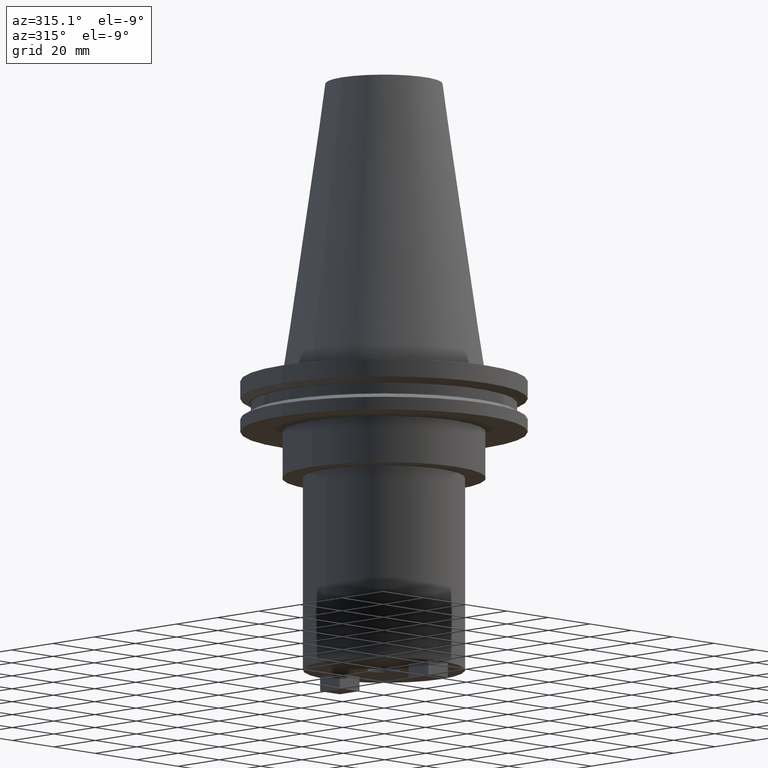
[diagram: clean part render]
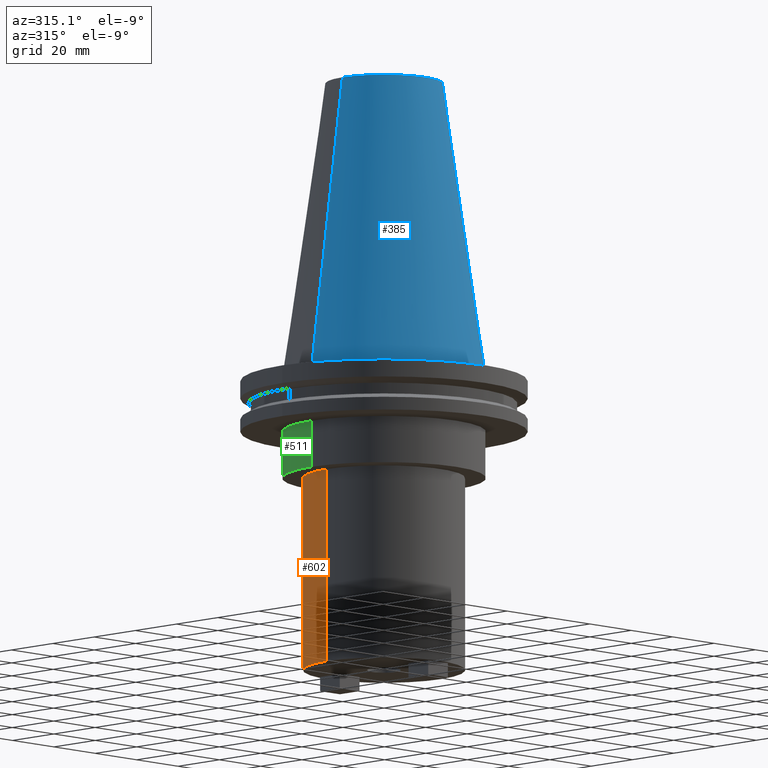
[diagram: same view with three faces highlighted in distinct colors, each labeled with its STEP entity id]
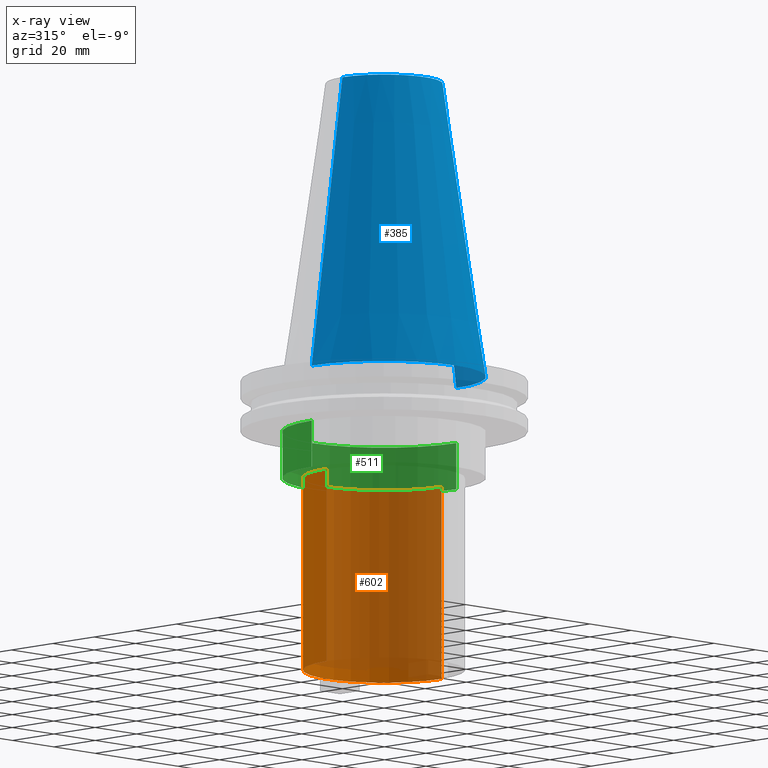
[diagram: x-ray of the same camera — body ghosted, the three highlighted faces saturated]
A machine part, auxiliary view with three faces highlighted in distinct colors.
The next image is the same camera in x-ray (body ghosted, the three faces saturated) — at least one of them is partly hidden behind the body in this view.
Their STEP definitions:

[orange] entity #602 — the highlighted cylindrical surface (partial cylindrical patch) has radius 27.8003 mm, axis along (-0, -0, 1).
#1 = EDGE_CURVE ( 'NONE', #269, #75, #1081, .T. ) ;
#11 = AXIS2_PLACEMENT_3D ( 'NONE', #192, #457, #791 ) ;
#75 = VERTEX_POINT ( 'NONE', #566 ) ;
#134 = AXIS2_PLACEMENT_3D ( 'NONE', #243, #226, #671 ) ;
#153 = DIRECTION ( 'NONE',  ( -0.000000000000000000, -0.000000000000000000, 1.000000000000000000 ) ) ;
#192 = CARTESIAN_POINT ( 'NONE',  ( 0.000000000000000000, 0.000000000000000000, -35.04999999999999716 ) ) ;
#207 = CARTESIAN_POINT ( 'NONE',  ( -27.80030000000000001, 3.404554841033616429E-15, -101.5999999999999943 ) ) ;
#226 = DIRECTION ( 'NONE',  ( -0.000000000000000000, -0.000000000000000000, 1.000000000000000000 ) ) ;
#243 = CARTESIAN_POINT ( 'NONE',  ( 0.000000000000000000, 0.000000000000000000, -101.5999999999999943 ) ) ;
#252 = CARTESIAN_POINT ( 'NONE',  ( -27.80030000000000001, 3.404554841033616429E-15, 0.000000000000000000 ) ) ;
#266 = VECTOR ( 'NONE', #1057, 1000.000000000000000 ) ;
#269 = VERTEX_POINT ( 'NONE', #670 ) ;
#306 = CARTESIAN_POINT ( 'NONE',  ( 0.000000000000000000, 0.000000000000000000, 0.000000000000000000 ) ) ;
#383 = CARTESIAN_POINT ( 'NONE',  ( 27.80030000000000001, 0.000000000000000000, 0.000000000000000000 ) ) ;
#419 = VERTEX_POINT ( 'NONE', #207 ) ;
#457 = DIRECTION ( 'NONE',  ( 0.000000000000000000, 0.000000000000000000, -1.000000000000000000 ) ) ;
#566 = CARTESIAN_POINT ( 'NONE',  ( 27.80030000000000001, 0.000000000000000000, -35.04999999999999716 ) ) ;
#590 = EDGE_CURVE ( 'NONE', #804, #75, #652, .T. ) ;
#602 = ADVANCED_FACE ( 'NONE', ( #737 ), #988, .T. ) ;
#641 = CIRCLE ( 'NONE', #134, 27.80030000000000001 ) ;
#652 = LINE ( 'NONE', #383, #266 ) ;
#670 = CARTESIAN_POINT ( 'NONE',  ( -27.80030000000000001, 3.404554841033616429E-15, -35.04999999999999716 ) ) ;
#671 = DIRECTION ( 'NONE',  ( 1.000000000000000000, 0.000000000000000000, 0.000000000000000000 ) ) ;
#675 = LINE ( 'NONE', #252, #815 ) ;
#728 = DIRECTION ( 'NONE',  ( 1.000000000000000000, 0.000000000000000000, 0.000000000000000000 ) ) ;
#732 = EDGE_CURVE ( 'NONE', #419, #269, #675, .T. ) ;
#737 = FACE_OUTER_BOUND ( 'NONE', #758, .T. ) ;
#758 = EDGE_LOOP ( 'NONE', ( #964, #846, #1016, #897 ) ) ;
#791 = DIRECTION ( 'NONE',  ( 1.000000000000000000, 0.000000000000000000, 0.000000000000000000 ) ) ;
#800 = CARTESIAN_POINT ( 'NONE',  ( 27.80030000000000001, 0.000000000000000000, -101.5999999999999943 ) ) ;
#804 = VERTEX_POINT ( 'NONE', #800 ) ;
#815 = VECTOR ( 'NONE', #829, 1000.000000000000000 ) ;
#829 = DIRECTION ( 'NONE',  ( -0.000000000000000000, -0.000000000000000000, 1.000000000000000000 ) ) ;
#846 = ORIENTED_EDGE ( 'NONE', *, *, #732, .T. ) ;
#886 = AXIS2_PLACEMENT_3D ( 'NONE', #306, #153, #728 ) ;
#897 = ORIENTED_EDGE ( 'NONE', *, *, #590, .F. ) ;
#964 = ORIENTED_EDGE ( 'NONE', *, *, #1034, .T. ) ;
#988 = CYLINDRICAL_SURFACE ( 'NONE', #886, 27.80030000000000001 ) ;
#1016 = ORIENTED_EDGE ( 'NONE', *, *, #1, .T. ) ;
#1034 = EDGE_CURVE ( 'NONE', #804, #419, #641, .T. ) ;
#1057 = DIRECTION ( 'NONE',  ( -0.000000000000000000, -0.000000000000000000, 1.000000000000000000 ) ) ;
#1081 = CIRCLE ( 'NONE', #11, 27.80030000000000001 ) ;

[blue] entity #385 — the highlighted conical surface has half-angle 8.297 deg.
#69 = DIRECTION ( 'NONE',  ( -0.000000000000000000, -0.000000000000000000, 1.000000000000000000 ) ) ;
#72 = EDGE_CURVE ( 'NONE', #759, #453, #722, .T. ) ;
#89 = CARTESIAN_POINT ( 'NONE',  ( -20.10819343178871321, 0.000000000000000000, 101.5999999999999801 ) ) ;
#98 = CONICAL_SURFACE ( 'NONE', #1046, 34.92499999999999005, 0.1448138465474119452 ) ;
#131 = VECTOR ( 'NONE', #875, 999.9999999999998863 ) ;
#180 = EDGE_CURVE ( 'NONE', #281, #453, #649, .T. ) ;
#209 = ORIENTED_EDGE ( 'NONE', *, *, #399, .T. ) ;
#257 = CARTESIAN_POINT ( 'NONE',  ( 20.10819343178871321, 3.369811209154858606E-15, 101.5999999999999801 ) ) ;
#281 = VERTEX_POINT ( 'NONE', #257 ) ;
#312 = DIRECTION ( 'NONE',  ( 1.000000000000000000, 0.000000000000000000, 0.000000000000000000 ) ) ;
#334 = DIRECTION ( 'NONE',  ( 1.000000000000000000, 0.000000000000000000, 0.000000000000000000 ) ) ;
#337 = CIRCLE ( 'NONE', #1063, 20.10819343178871321 ) ;
#385 = ADVANCED_FACE ( 'NONE', ( #537 ), #98, .T. ) ;
#399 = EDGE_CURVE ( 'NONE', #1066, #759, #962, .T. ) ;
#426 = AXIS2_PLACEMENT_3D ( 'NONE', #821, #69, #312 ) ;
#453 = VERTEX_POINT ( 'NONE', #609 ) ;
#466 = CARTESIAN_POINT ( 'NONE',  ( 0.000000000000000000, 0.000000000000000000, 0.000000000000000000 ) ) ;
#508 = CARTESIAN_POINT ( 'NONE',  ( -34.92499999999999005, 0.000000000000000000, 0.000000000000000000 ) ) ;
#537 = FACE_OUTER_BOUND ( 'NONE', #933, .T. ) ;
#578 = CARTESIAN_POINT ( 'NONE',  ( 34.92499999999999005, 4.277078946022130098E-15, 0.000000000000000000 ) ) ;
#609 = CARTESIAN_POINT ( 'NONE',  ( 34.92499999999999005, 4.277078946022130098E-15, 0.000000000000000000 ) ) ;
#614 = DIRECTION ( 'NONE',  ( -1.000000000000000000, 0.000000000000000000, 0.000000000000000000 ) ) ;
#617 = CARTESIAN_POINT ( 'NONE',  ( 0.000000000000000000, 0.000000000000000000, 101.5999999999999801 ) ) ;
#649 = LINE ( 'NONE', #578, #834 ) ;
#697 = CARTESIAN_POINT ( 'NONE',  ( -34.92499999999999005, 0.000000000000000000, 0.000000000000000000 ) ) ;
#712 = EDGE_CURVE ( 'NONE', #1066, #281, #337, .T. ) ;
#722 = CIRCLE ( 'NONE', #426, 34.92499999999999005 ) ;
#735 = ORIENTED_EDGE ( 'NONE', *, *, #712, .F. ) ;
#756 = DIRECTION ( 'NONE',  ( -0.000000000000000000, -0.000000000000000000, 1.000000000000000000 ) ) ;
#759 = VERTEX_POINT ( 'NONE', #508 ) ;
#770 = ORIENTED_EDGE ( 'NONE', *, *, #180, .F. ) ;
#801 = DIRECTION ( 'NONE',  ( 0.000000000000000000, 0.000000000000000000, -1.000000000000000000 ) ) ;
#821 = CARTESIAN_POINT ( 'NONE',  ( 0.000000000000000000, 0.000000000000000000, 0.000000000000000000 ) ) ;
#834 = VECTOR ( 'NONE', #896, 999.9999999999998863 ) ;
#875 = DIRECTION ( 'NONE',  ( -0.1443082272672999988, 0.000000000000000000, -0.9895327864921755756 ) ) ;
#896 = DIRECTION ( 'NONE',  ( 0.1443082272672999988, 1.767266086135277066E-17, -0.9895327864921755756 ) ) ;
#933 = EDGE_LOOP ( 'NONE', ( #770, #735, #209, #948 ) ) ;
#948 = ORIENTED_EDGE ( 'NONE', *, *, #72, .T. ) ;
#962 = LINE ( 'NONE', #697, #131 ) ;
#1046 = AXIS2_PLACEMENT_3D ( 'NONE', #466, #801, #614 ) ;
#1063 = AXIS2_PLACEMENT_3D ( 'NONE', #617, #756, #334 ) ;
#1066 = VERTEX_POINT ( 'NONE', #89 ) ;

[green] entity #511 — the highlighted cylindrical surface (partial cylindrical patch) has radius 34.925 mm, axis along (-0, -0, 1).
#26 = VECTOR ( 'NONE', #1047, 1000.000000000000000 ) ;
#28 = LINE ( 'NONE', #879, #26 ) ;
#77 = CARTESIAN_POINT ( 'NONE',  ( 0.000000000000000000, 0.000000000000000000, -19.04999999999999716 ) ) ;
#158 = CARTESIAN_POINT ( 'NONE',  ( 34.92499999999999716, 0.000000000000000000, 101.5999999999999943 ) ) ;
#178 = AXIS2_PLACEMENT_3D ( 'NONE', #868, #278, #450 ) ;
#214 = DIRECTION ( 'NONE',  ( -0.000000000000000000, -0.000000000000000000, 1.000000000000000000 ) ) ;
#229 = CIRCLE ( 'NONE', #178, 34.92499999999999716 ) ;
#278 = DIRECTION ( 'NONE',  ( -0.000000000000000000, -0.000000000000000000, 1.000000000000000000 ) ) ;
#292 = ORIENTED_EDGE ( 'NONE', *, *, #524, .F. ) ;
#349 = ORIENTED_EDGE ( 'NONE', *, *, #478, .T. ) ;
#412 = AXIS2_PLACEMENT_3D ( 'NONE', #77, #696, #588 ) ;
#413 = EDGE_CURVE ( 'NONE', #650, #1036, #28, .T. ) ;
#430 = ORIENTED_EDGE ( 'NONE', *, *, #413, .T. ) ;
#444 = EDGE_LOOP ( 'NONE', ( #349, #430, #967, #292 ) ) ;
#450 = DIRECTION ( 'NONE',  ( 1.000000000000000000, 0.000000000000000000, 0.000000000000000000 ) ) ;
#465 = AXIS2_PLACEMENT_3D ( 'NONE', #899, #214, #555 ) ;
#478 = EDGE_CURVE ( 'NONE', #960, #650, #229, .T. ) ;
#487 = LINE ( 'NONE', #158, #850 ) ;
#492 = CYLINDRICAL_SURFACE ( 'NONE', #465, 34.92499999999999716 ) ;
#511 = ADVANCED_FACE ( 'NONE', ( #565 ), #492, .T. ) ;
#524 = EDGE_CURVE ( 'NONE', #960, #655, #487, .T. ) ;
#555 = DIRECTION ( 'NONE',  ( 1.000000000000000000, 0.000000000000000000, 0.000000000000000000 ) ) ;
#565 = FACE_OUTER_BOUND ( 'NONE', #444, .T. ) ;
#580 = CARTESIAN_POINT ( 'NONE',  ( 34.92499999999999716, 0.000000000000000000, -35.04999999999999716 ) ) ;
#588 = DIRECTION ( 'NONE',  ( 1.000000000000000000, 0.000000000000000000, 0.000000000000000000 ) ) ;
#650 = VERTEX_POINT ( 'NONE', #664 ) ;
#655 = VERTEX_POINT ( 'NONE', #762 ) ;
#664 = CARTESIAN_POINT ( 'NONE',  ( -34.92499999999999716, 4.277078946022130887E-15, -35.04999999999999716 ) ) ;
#696 = DIRECTION ( 'NONE',  ( -0.000000000000000000, -0.000000000000000000, 1.000000000000000000 ) ) ;
#738 = EDGE_CURVE ( 'NONE', #655, #1036, #1012, .T. ) ;
#762 = CARTESIAN_POINT ( 'NONE',  ( 34.92499999999999716, 0.000000000000000000, -19.04999999999999716 ) ) ;
#817 = CARTESIAN_POINT ( 'NONE',  ( -34.92499999999999716, 4.277078946022130887E-15, -19.04999999999999716 ) ) ;
#850 = VECTOR ( 'NONE', #891, 1000.000000000000000 ) ;
#868 = CARTESIAN_POINT ( 'NONE',  ( 0.000000000000000000, 0.000000000000000000, -35.04999999999999716 ) ) ;
#879 = CARTESIAN_POINT ( 'NONE',  ( -34.92499999999999716, 4.277078946022130887E-15, 101.5999999999999943 ) ) ;
#891 = DIRECTION ( 'NONE',  ( -0.000000000000000000, -0.000000000000000000, 1.000000000000000000 ) ) ;
#899 = CARTESIAN_POINT ( 'NONE',  ( 0.000000000000000000, 0.000000000000000000, 101.5999999999999943 ) ) ;
#960 = VERTEX_POINT ( 'NONE', #580 ) ;
#967 = ORIENTED_EDGE ( 'NONE', *, *, #738, .F. ) ;
#1012 = CIRCLE ( 'NONE', #412, 34.92499999999999716 ) ;
#1036 = VERTEX_POINT ( 'NONE', #817 ) ;
#1047 = DIRECTION ( 'NONE',  ( -0.000000000000000000, -0.000000000000000000, 1.000000000000000000 ) ) ;